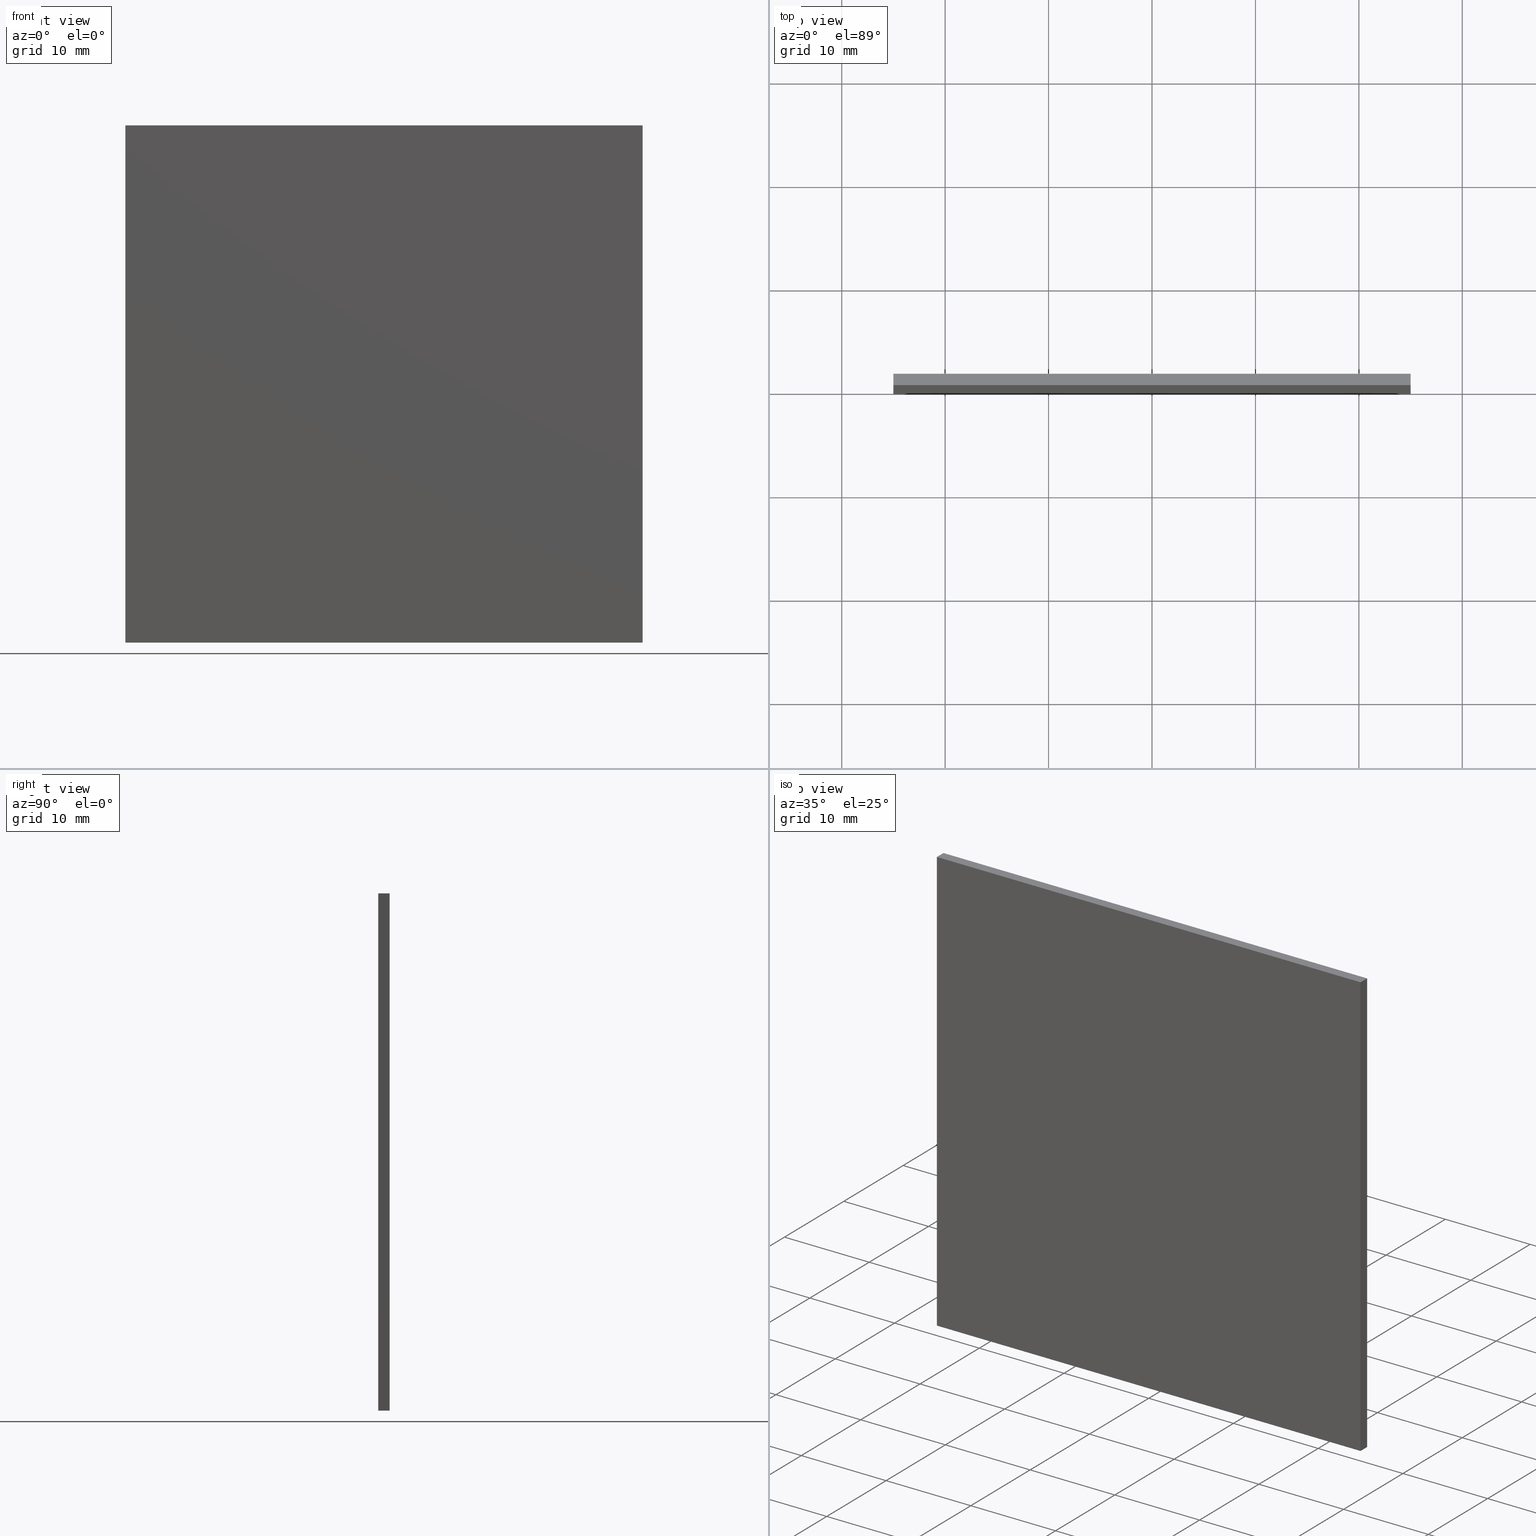
[diagram: canonical four-view strip — front | top / right | iso, engineering-drawing reading convention]
A machine part, canonical four-view strip (front | top / right | iso — engineering-drawing reading convention). The complete STEP part file that produces these views, byte-faithful:
ISO-10303-21;
HEADER;
FILE_DESCRIPTION (( 'STEP AP214' ),
    '1' );
FILE_NAME ('258506.STEP',
    '2019-08-06T09:26:35',
    ( 'user' ),
    ( '΢���й�' ),
    'SwSTEP 2.0',
    'SolidWorks 2016',
    '' );
FILE_SCHEMA (( 'AUTOMOTIVE_DESIGN' ));
ENDSEC;

DATA;
#1 = VECTOR ( 'NONE', #55, 1000.000000000000000 ) ;
#2 = DIRECTION ( 'NONE',  ( 0.0000000000000000000, -0.0000000000000000000, 1.000000000000000000 ) ) ;
#3 = VERTEX_POINT ( 'NONE', #71 ) ;
#4 = DIRECTION ( 'NONE',  ( 0.0000000000000000000, 0.0000000000000000000, 1.000000000000000000 ) ) ;
#5 = DIRECTION ( 'NONE',  ( 1.387778780781445700E-016, 0.0000000000000000000, 1.000000000000000000 ) ) ;
#6 = SURFACE_SIDE_STYLE ('',( #156 ) ) ;
#7 = LINE ( 'NONE', #162, #193 ) ;
#8 = APPLICATION_CONTEXT ( 'automotive_design' ) ;
#9 = APPLICATION_PROTOCOL_DEFINITION ( 'draft international standard', 'automotive_design', 1998, #106 ) ;
#10 = FACE_OUTER_BOUND ( 'NONE', #58, .T. ) ;
#11 = VECTOR ( 'NONE', #195, 1000.000000000000000 ) ;
#12 = VECTOR ( 'NONE', #103, 1000.000000000000000 ) ;
#13 = AXIS2_PLACEMENT_3D ( 'NONE', #117, #20, #129 ) ;
#14 = VECTOR ( 'NONE', #18, 1000.000000000000000 ) ;
#15 = AXIS2_PLACEMENT_3D ( 'NONE', #35, #89, #196 ) ;
#16 = PLANE ( 'NONE',  #34 ) ;
#17 = VERTEX_POINT ( 'NONE', #178 ) ;
#18 = DIRECTION ( 'NONE',  ( 1.000000000000000000, 0.0000000000000000000, 0.0000000000000000000 ) ) ;
#19 = VECTOR ( 'NONE', #50, 1000.000000000000000 ) ;
#20 = DIRECTION ( 'NONE',  ( 1.000000000000000000, 0.0000000000000000000, -1.387778780781445700E-016 ) ) ;
#21 = PRODUCT ( '258506', '258506', '', ( #199 ) ) ;
#22 = CARTESIAN_POINT ( 'NONE',  ( -24.99999999999999600, 1.100000000000000100, 25.00000000000000000 ) ) ;
#23 = VERTEX_POINT ( 'NONE', #144 ) ;
#24 = ORIENTED_EDGE ( 'NONE', *, *, #164, .F. ) ;
#25 = FILL_AREA_STYLE_COLOUR ( '', #28 ) ;
#26 =( LENGTH_UNIT ( ) NAMED_UNIT ( * ) SI_UNIT ( .MILLI., .METRE. ) );
#27 = FILL_AREA_STYLE ('',( #123 ) ) ;
#28 = COLOUR_RGB ( '',1.000000000000000000, 1.000000000000000000, 1.000000000000000000 ) ;
#29 = PRODUCT_DEFINITION_CONTEXT ( 'detailed design', #106, 'design' ) ;
#30 = EDGE_CURVE ( 'NONE', #102, #108, #70, .T. ) ;
#31 = FACE_OUTER_BOUND ( 'NONE', #155, .T. ) ;
#32 = ORIENTED_EDGE ( 'NONE', *, *, #49, .F. ) ;
#33 = ADVANCED_FACE ( 'NONE', ( #10 ), #16, .T. ) ;
#34 = AXIS2_PLACEMENT_3D ( 'NONE', #113, #98, #2 ) ;
#35 = CARTESIAN_POINT ( 'NONE',  ( 24.99999999999999600, 1.100000000000000100, -25.00000000000000000 ) ) ;
#36 = CARTESIAN_POINT ( 'NONE',  ( -25.00000000000000400, 1.100000000000000100, -25.00000000000000000 ) ) ;
#37 = PLANE ( 'NONE',  #94 ) ;
#38 = SHAPE_DEFINITION_REPRESENTATION ( #48, #107 ) ;
#39 = CARTESIAN_POINT ( 'NONE',  ( -25.00000000000000400, 0.0000000000000000000, -25.00000000000000000 ) ) ;
#40 = EDGE_CURVE ( 'NONE', #51, #23, #174, .T. ) ;
#41 =( NAMED_UNIT ( * ) SI_UNIT ( $, .STERADIAN. ) SOLID_ANGLE_UNIT ( ) );
#42 = ORIENTED_EDGE ( 'NONE', *, *, #49, .T. ) ;
#43 = SURFACE_STYLE_USAGE ( .BOTH. , #134 ) ;
#44 = EDGE_CURVE ( 'NONE', #108, #51, #66, .T. ) ;
#45 = AXIS2_PLACEMENT_3D ( 'NONE', #197, #148, #57 ) ;
#46 = EDGE_LOOP ( 'NONE', ( #192, #32, #87, #202 ) ) ;
#47 = MECHANICAL_DESIGN_GEOMETRIC_PRESENTATION_REPRESENTATION (  '', ( #189 ), #165 ) ;
#48 = PRODUCT_DEFINITION_SHAPE ( 'NONE', 'NONE',  #137 ) ;
#49 = EDGE_CURVE ( 'NONE', #147, #17, #61, .T. ) ;
#50 = DIRECTION ( 'NONE',  ( -0.0000000000000000000, -1.000000000000000000, -0.0000000000000000000 ) ) ;
#51 = VERTEX_POINT ( 'NONE', #86 ) ;
#52 = CARTESIAN_POINT ( 'NONE',  ( -25.00000000000000400, 1.100000000000000100, -25.00000000000000000 ) ) ;
#53 = LINE ( 'NONE', #52, #111 ) ;
#54 = DIRECTION ( 'NONE',  ( -1.000000000000000000, 0.0000000000000000000, -0.0000000000000000000 ) ) ;
#55 = DIRECTION ( 'NONE',  ( -1.000000000000000000, -0.0000000000000000000, -0.0000000000000000000 ) ) ;
#56 = VECTOR ( 'NONE', #93, 1000.000000000000000 ) ;
#57 = DIRECTION ( 'NONE',  ( 0.0000000000000000000, -0.0000000000000000000, 1.000000000000000000 ) ) ;
#58 = EDGE_LOOP ( 'NONE', ( #140, #96, #141, #67 ) ) ;
#59 = CARTESIAN_POINT ( 'NONE',  ( 0.0000000000000000000, 0.0000000000000000000, 0.0000000000000000000 ) ) ;
#60 =( NAMED_UNIT ( * ) PLANE_ANGLE_UNIT ( ) SI_UNIT ( $, .RADIAN. ) );
#61 = LINE ( 'NONE', #179, #11 ) ;
#62 = EDGE_LOOP ( 'NONE', ( #187, #171, #166, #42 ) ) ;
#63 = LINE ( 'NONE', #119, #1 ) ;
#64 = PRODUCT_RELATED_PRODUCT_CATEGORY ( 'part', '', ( #21 ) ) ;
#65 = UNCERTAINTY_MEASURE_WITH_UNIT (LENGTH_MEASURE( 1.000000000000000100E-005 ), #77, 'distance_accuracy_value', 'NONE');
#66 = LINE ( 'NONE', #115, #14 ) ;
#67 = ORIENTED_EDGE ( 'NONE', *, *, #44, .T. ) ;
#68 = UNCERTAINTY_MEASURE_WITH_UNIT (LENGTH_MEASURE( 1.000000000000000100E-005 ), #150, 'distance_accuracy_value', 'NONE');
#69 = ORIENTED_EDGE ( 'NONE', *, *, #135, .T. ) ;
#70 = LINE ( 'NONE', #157, #125 ) ;
#71 = CARTESIAN_POINT ( 'NONE',  ( -25.00000000000000400, 0.0000000000000000000, -25.00000000000000000 ) ) ;
#72 = PRESENTATION_STYLE_ASSIGNMENT (( #43 ) ) ;
#73 = CARTESIAN_POINT ( 'NONE',  ( -24.99999999999999600, 1.100000000000000100, 25.00000000000000000 ) ) ;
#74 = DIRECTION ( 'NONE',  ( 1.000000000000000000, 0.0000000000000000000, 0.0000000000000000000 ) ) ;
#75 = ORIENTED_EDGE ( 'NONE', *, *, #164, .T. ) ;
#76 = ADVANCED_FACE ( 'NONE', ( #31 ), #159, .F. ) ;
#77 =( LENGTH_UNIT ( ) NAMED_UNIT ( * ) SI_UNIT ( .MILLI., .METRE. ) );
#78 =( NAMED_UNIT ( * ) PLANE_ANGLE_UNIT ( ) SI_UNIT ( $, .RADIAN. ) );
#79 = ORIENTED_EDGE ( 'NONE', *, *, #149, .F. ) ;
#80 = SURFACE_STYLE_FILL_AREA ( #27 ) ;
#81 = VECTOR ( 'NONE', #130, 1000.000000000000000 ) ;
#82 = STYLED_ITEM ( 'NONE', ( #72 ), #107 ) ;
#83 = EDGE_LOOP ( 'NONE', ( #158, #176, #24, #172 ) ) ;
#84 = CLOSED_SHELL ( 'NONE', ( #138, #109, #76, #131, #33, #169 ) ) ;
#85 = VERTEX_POINT ( 'NONE', #99 ) ;
#86 = CARTESIAN_POINT ( 'NONE',  ( 25.00000000000000400, 1.100000000000000100, 25.00000000000000000 ) ) ;
#87 = ORIENTED_EDGE ( 'NONE', *, *, #194, .F. ) ;
#88 = CARTESIAN_POINT ( 'NONE',  ( -25.00000000000000400, 1.100000000000000100, -25.00000000000000000 ) ) ;
#89 = DIRECTION ( 'NONE',  ( -1.000000000000000000, 0.0000000000000000000, 1.387778780781445700E-016 ) ) ;
#90 = CARTESIAN_POINT ( 'NONE',  ( 24.99999999999999600, 0.0000000000000000000, -25.00000000000000000 ) ) ;
#91 = LINE ( 'NONE', #39, #175 ) ;
#92 = PRESENTATION_LAYER_ASSIGNMENT (  '', '', ( #82 ) ) ;
#93 = DIRECTION ( 'NONE',  ( -1.387778780781445700E-016, -0.0000000000000000000, -1.000000000000000000 ) ) ;
#94 = AXIS2_PLACEMENT_3D ( 'NONE', #22, #160, #54 ) ;
#95 = DIRECTION ( 'NONE',  ( 1.000000000000000000, 0.0000000000000000000, 0.0000000000000000000 ) ) ;
#96 = ORIENTED_EDGE ( 'NONE', *, *, #152, .T. ) ;
#97 = AXIS2_PLACEMENT_3D ( 'NONE', #88, #4, #118 ) ;
#98 = DIRECTION ( 'NONE',  ( 0.0000000000000000000, 1.000000000000000000, 0.0000000000000000000 ) ) ;
#99 = CARTESIAN_POINT ( 'NONE',  ( -24.99999999999999600, 0.0000000000000000000, 25.00000000000000000 ) ) ;
#100 = LINE ( 'NONE', #145, #81 ) ;
#101 = PLANE ( 'NONE',  #97 ) ;
#102 = VERTEX_POINT ( 'NONE', #36 ) ;
#103 = DIRECTION ( 'NONE',  ( -1.387778780781445700E-016, -0.0000000000000000000, -1.000000000000000000 ) ) ;
#104 = FILL_AREA_STYLE ('',( #25 ) ) ;
#105 = EDGE_CURVE ( 'NONE', #102, #3, #53, .T. ) ;
#106 = APPLICATION_CONTEXT ( 'automotive_design' ) ;
#107 = ADVANCED_BREP_SHAPE_REPRESENTATION ( '258506', ( #200, #122 ), #143 ) ;
#108 = VERTEX_POINT ( 'NONE', #73 ) ;
#109 = ADVANCED_FACE ( 'NONE', ( #190 ), #101, .F. ) ;
#110 = UNCERTAINTY_MEASURE_WITH_UNIT (LENGTH_MEASURE( 1.000000000000000100E-005 ), #26, 'distance_accuracy_value', 'NONE');
#111 = VECTOR ( 'NONE', #180, 1000.000000000000000 ) ;
#112 = LINE ( 'NONE', #90, #12 ) ;
#113 = CARTESIAN_POINT ( 'NONE',  ( 0.0000000000000000000, 1.100000000000000100, 0.0000000000000000000 ) ) ;
#114 =( GEOMETRIC_REPRESENTATION_CONTEXT ( 3 ) GLOBAL_UNCERTAINTY_ASSIGNED_CONTEXT ( ( #68 ) ) GLOBAL_UNIT_ASSIGNED_CONTEXT ( ( #150, #60, #167 ) ) REPRESENTATION_CONTEXT ( 'NONE', 'WORKASPACE' ) );
#115 = CARTESIAN_POINT ( 'NONE',  ( -24.99999999999999600, 1.100000000000000100, 25.00000000000000000 ) ) ;
#116 = COLOUR_RGB ( '',1.000000000000000000, 1.000000000000000000, 1.000000000000000000 ) ;
#117 = CARTESIAN_POINT ( 'NONE',  ( -25.00000000000000400, 1.100000000000000100, -25.00000000000000000 ) ) ;
#118 = DIRECTION ( 'NONE',  ( 1.000000000000000000, 0.0000000000000000000, -0.0000000000000000000 ) ) ;
#119 = CARTESIAN_POINT ( 'NONE',  ( -25.00000000000000400, 0.0000000000000000000, -25.00000000000000000 ) ) ;
#120 = PRODUCT_DEFINITION_FORMATION_WITH_SPECIFIED_SOURCE ( '�κ�', '', #21, .NOT_KNOWN. ) ;
#121 = SURFACE_STYLE_USAGE ( .BOTH. , #6 ) ;
#122 = AXIS2_PLACEMENT_3D ( 'NONE', #59, #185, #95 ) ;
#123 = FILL_AREA_STYLE_COLOUR ( '', #116 ) ;
#124 = ORIENTED_EDGE ( 'NONE', *, *, #40, .F. ) ;
#125 = VECTOR ( 'NONE', #177, 1000.000000000000000 ) ;
#126 = FACE_OUTER_BOUND ( 'NONE', #183, .T. ) ;
#127 = CARTESIAN_POINT ( 'NONE',  ( 25.00000000000000400, 1.100000000000000100, 25.00000000000000000 ) ) ;
#128 = CARTESIAN_POINT ( 'NONE',  ( 24.99999999999999600, 1.100000000000000100, -25.00000000000000000 ) ) ;
#129 = DIRECTION ( 'NONE',  ( -1.387778780781445700E-016, 0.0000000000000000000, -1.000000000000000000 ) ) ;
#130 = DIRECTION ( 'NONE',  ( -0.0000000000000000000, -1.000000000000000000, -0.0000000000000000000 ) ) ;
#131 = ADVANCED_FACE ( 'NONE', ( #126 ), #37, .F. ) ;
#132 = PLANE ( 'NONE',  #45 ) ;
#133 =( NAMED_UNIT ( * ) PLANE_ANGLE_UNIT ( ) SI_UNIT ( $, .RADIAN. ) );
#134 = SURFACE_SIDE_STYLE ('',( #80 ) ) ;
#135 = EDGE_CURVE ( 'NONE', #85, #23, #173, .T. ) ;
#136 = ORIENTED_EDGE ( 'NONE', *, *, #30, .F. ) ;
#137 = PRODUCT_DEFINITION ( 'δ֪', '', #120, #29 ) ;
#138 = ADVANCED_FACE ( 'NONE', ( #201 ), #146, .F. ) ;
#139 = MECHANICAL_DESIGN_GEOMETRIC_PRESENTATION_REPRESENTATION (  '', ( #82 ), #114 ) ;
#140 = ORIENTED_EDGE ( 'NONE', *, *, #194, .T. ) ;
#141 = ORIENTED_EDGE ( 'NONE', *, *, #30, .T. ) ;
#142 = ORIENTED_EDGE ( 'NONE', *, *, #105, .T. ) ;
#143 =( GEOMETRIC_REPRESENTATION_CONTEXT ( 3 ) GLOBAL_UNCERTAINTY_ASSIGNED_CONTEXT ( ( #65 ) ) GLOBAL_UNIT_ASSIGNED_CONTEXT ( ( #77, #78, #184 ) ) REPRESENTATION_CONTEXT ( 'NONE', 'WORKASPACE' ) );
#144 = CARTESIAN_POINT ( 'NONE',  ( 25.00000000000000400, 0.0000000000000000000, 25.00000000000000000 ) ) ;
#145 = CARTESIAN_POINT ( 'NONE',  ( -24.99999999999999600, 1.100000000000000100, 25.00000000000000000 ) ) ;
#146 = PLANE ( 'NONE',  #15 ) ;
#147 = VERTEX_POINT ( 'NONE', #128 ) ;
#148 = DIRECTION ( 'NONE',  ( 0.0000000000000000000, 1.000000000000000000, 0.0000000000000000000 ) ) ;
#149 = EDGE_CURVE ( 'NONE', #108, #85, #100, .T. ) ;
#150 =( LENGTH_UNIT ( ) NAMED_UNIT ( * ) SI_UNIT ( .MILLI., .METRE. ) );
#151 = EDGE_CURVE ( 'NONE', #17, #3, #63, .T. ) ;
#152 = EDGE_CURVE ( 'NONE', #147, #102, #7, .T. ) ;
#153 = EDGE_CURVE ( 'NONE', #23, #17, #112, .T. ) ;
#154 = PRESENTATION_STYLE_ASSIGNMENT (( #121 ) ) ;
#155 = EDGE_LOOP ( 'NONE', ( #75, #79, #136, #142 ) ) ;
#156 = SURFACE_STYLE_FILL_AREA ( #104 ) ;
#157 = CARTESIAN_POINT ( 'NONE',  ( -25.00000000000000400, 1.100000000000000100, -25.00000000000000000 ) ) ;
#158 = ORIENTED_EDGE ( 'NONE', *, *, #153, .F. ) ;
#159 = PLANE ( 'NONE',  #13 ) ;
#160 = DIRECTION ( 'NONE',  ( 0.0000000000000000000, 0.0000000000000000000, -1.000000000000000000 ) ) ;
#161 = CARTESIAN_POINT ( 'NONE',  ( -24.99999999999999600, 0.0000000000000000000, 25.00000000000000000 ) ) ;
#162 = CARTESIAN_POINT ( 'NONE',  ( -25.00000000000000400, 1.100000000000000100, -25.00000000000000000 ) ) ;
#163 = CARTESIAN_POINT ( 'NONE',  ( 24.99999999999999600, 1.100000000000000100, -25.00000000000000000 ) ) ;
#164 = EDGE_CURVE ( 'NONE', #3, #85, #91, .T. ) ;
#165 =( GEOMETRIC_REPRESENTATION_CONTEXT ( 3 ) GLOBAL_UNCERTAINTY_ASSIGNED_CONTEXT ( ( #110 ) ) GLOBAL_UNIT_ASSIGNED_CONTEXT ( ( #26, #133, #41 ) ) REPRESENTATION_CONTEXT ( 'NONE', 'WORKASPACE' ) );
#166 = ORIENTED_EDGE ( 'NONE', *, *, #152, .F. ) ;
#167 =( NAMED_UNIT ( * ) SI_UNIT ( $, .STERADIAN. ) SOLID_ANGLE_UNIT ( ) );
#168 = ORIENTED_EDGE ( 'NONE', *, *, #149, .T. ) ;
#169 = ADVANCED_FACE ( 'NONE', ( #170 ), #132, .F. ) ;
#170 = FACE_OUTER_BOUND ( 'NONE', #83, .T. ) ;
#171 = ORIENTED_EDGE ( 'NONE', *, *, #105, .F. ) ;
#172 = ORIENTED_EDGE ( 'NONE', *, *, #151, .F. ) ;
#173 = LINE ( 'NONE', #161, #186 ) ;
#174 = LINE ( 'NONE', #127, #19 ) ;
#175 = VECTOR ( 'NONE', #5, 1000.000000000000000 ) ;
#176 = ORIENTED_EDGE ( 'NONE', *, *, #135, .F. ) ;
#177 = DIRECTION ( 'NONE',  ( 1.387778780781445700E-016, 0.0000000000000000000, 1.000000000000000000 ) ) ;
#178 = CARTESIAN_POINT ( 'NONE',  ( 24.99999999999999600, 0.0000000000000000000, -25.00000000000000000 ) ) ;
#179 = CARTESIAN_POINT ( 'NONE',  ( 24.99999999999999600, 1.100000000000000100, -25.00000000000000000 ) ) ;
#180 = DIRECTION ( 'NONE',  ( -0.0000000000000000000, -1.000000000000000000, -0.0000000000000000000 ) ) ;
#181 = LINE ( 'NONE', #163, #56 ) ;
#182 = DIRECTION ( 'NONE',  ( -1.000000000000000000, -0.0000000000000000000, -0.0000000000000000000 ) ) ;
#183 = EDGE_LOOP ( 'NONE', ( #69, #124, #188, #168 ) ) ;
#184 =( NAMED_UNIT ( * ) SI_UNIT ( $, .STERADIAN. ) SOLID_ANGLE_UNIT ( ) );
#185 = DIRECTION ( 'NONE',  ( 0.0000000000000000000, 0.0000000000000000000, 1.000000000000000000 ) ) ;
#186 = VECTOR ( 'NONE', #74, 1000.000000000000000 ) ;
#187 = ORIENTED_EDGE ( 'NONE', *, *, #151, .T. ) ;
#188 = ORIENTED_EDGE ( 'NONE', *, *, #44, .F. ) ;
#189 = STYLED_ITEM ( 'NONE', ( #154 ), #200 ) ;
#190 = FACE_OUTER_BOUND ( 'NONE', #62, .T. ) ;
#191 = PRESENTATION_LAYER_ASSIGNMENT (  '', '', ( #189 ) ) ;
#192 = ORIENTED_EDGE ( 'NONE', *, *, #153, .T. ) ;
#193 = VECTOR ( 'NONE', #182, 1000.000000000000000 ) ;
#194 = EDGE_CURVE ( 'NONE', #51, #147, #181, .T. ) ;
#195 = DIRECTION ( 'NONE',  ( -0.0000000000000000000, -1.000000000000000000, -0.0000000000000000000 ) ) ;
#196 = DIRECTION ( 'NONE',  ( 1.387778780781445700E-016, 0.0000000000000000000, 1.000000000000000000 ) ) ;
#197 = CARTESIAN_POINT ( 'NONE',  ( 0.0000000000000000000, 0.0000000000000000000, 0.0000000000000000000 ) ) ;
#198 = APPLICATION_PROTOCOL_DEFINITION ( 'draft international standard', 'automotive_design', 1998, #8 ) ;
#199 = PRODUCT_CONTEXT ( 'NONE', #8, 'mechanical' ) ;
#200 = MANIFOLD_SOLID_BREP ( '͹̨-����1', #84 ) ;
#201 = FACE_OUTER_BOUND ( 'NONE', #46, .T. ) ;
#202 = ORIENTED_EDGE ( 'NONE', *, *, #40, .T. ) ;
ENDSEC;
END-ISO-10303-21;
